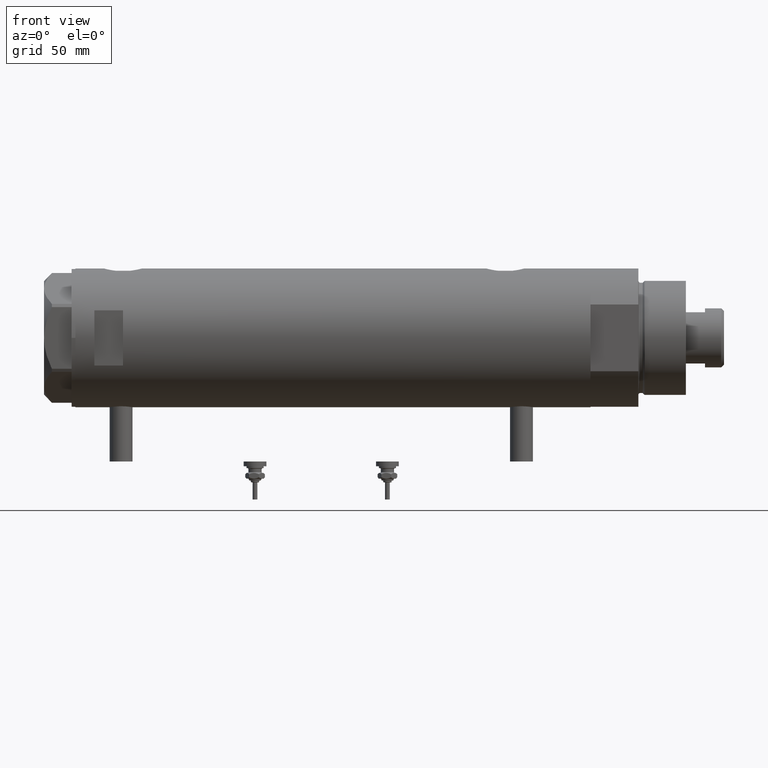
[diagram: clean part render]
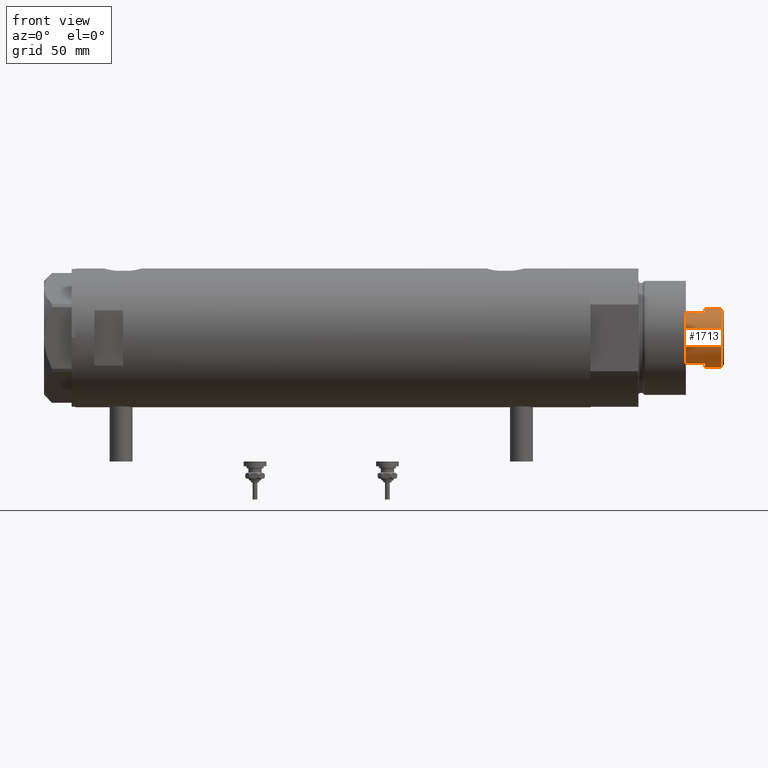
[diagram: same view with one face highlighted and labeled with its STEP entity id]
A machine part, front view. The second image highlights one B-rep face of the part: STEP entity #1713.
In plain terms, the highlighted cylindrical surface (edge-blend (fillet) strip) has radius 15.5 mm, axis along (-1, -0, 0).
Its self-contained STEP definition (entity closure, byte-faithful):
#159 = VERTEX_POINT ( 'NONE', #1065 ) ;
#220 = EDGE_CURVE ( 'NONE', #2466, #5393, #1039, .T. ) ;
#231 = DIRECTION ( 'NONE',  ( -0.000000000000000000, -0.000000000000000000, -1.000000000000000000 ) ) ;
#233 = ORIENTED_EDGE ( 'NONE', *, *, #3701, .T. ) ;
#391 = CARTESIAN_POINT ( 'NONE',  ( 0.000000000000000000, 0.000000000000000000, 305.0000000000000000 ) ) ;
#404 = EDGE_CURVE ( 'NONE', #1925, #767, #2929, .T. ) ;
#519 = DIRECTION ( 'NONE',  ( 0.000000000000000000, 0.000000000000000000, 1.000000000000000000 ) ) ;
#673 = DIRECTION ( 'NONE',  ( 1.000000000000000000, 0.000000000000000000, 0.000000000000000000 ) ) ;
#767 = VERTEX_POINT ( 'NONE', #4295 ) ;
#777 = ORIENTED_EDGE ( 'NONE', *, *, #2465, .T. ) ;
#841 = AXIS2_PLACEMENT_3D ( 'NONE', #1445, #3794, #1033 ) ;
#864 = EDGE_CURVE ( 'NONE', #2466, #159, #1584, .T. ) ;
#973 = DIRECTION ( 'NONE',  ( 1.000000000000000000, 0.000000000000000000, 0.000000000000000000 ) ) ;
#1033 = DIRECTION ( 'NONE',  ( 1.000000000000000000, 0.000000000000000000, 0.000000000000000000 ) ) ;
#1039 = LINE ( 'NONE', #2969, #4280 ) ;
#1065 = CARTESIAN_POINT ( 'NONE',  ( 15.50000000000000178, 1.898202538678397557E-15, 305.0000000000000000 ) ) ;
#1445 = CARTESIAN_POINT ( 'NONE',  ( 0.000000000000000000, 0.000000000000000000, 295.0000000000000000 ) ) ;
#1447 = EDGE_CURVE ( 'NONE', #5401, #5393, #3420, .T. ) ;
#1455 = ORIENTED_EDGE ( 'NONE', *, *, #864, .T. ) ;
#1578 = ORIENTED_EDGE ( 'NONE', *, *, #2135, .T. ) ;
#1584 = CIRCLE ( 'NONE', #5546, 15.50000000000000000 ) ;
#1609 = CARTESIAN_POINT ( 'NONE',  ( 0.000000000000000000, 0.000000000000000000, 313.5999999999999659 ) ) ;
#1640 = DIRECTION ( 'NONE',  ( 0.000000000000000000, 0.000000000000000000, -1.000000000000000000 ) ) ;
#1713 = ADVANCED_FACE ( 'NONE', ( #2762 ), #2263, .T. ) ;
#1743 = EDGE_LOOP ( 'NONE', ( #2913, #777, #233, #4989, #1578, #4020, #3346, #1455 ) ) ;
#1925 = VERTEX_POINT ( 'NONE', #4229 ) ;
#1996 = CARTESIAN_POINT ( 'NONE',  ( 0.000000000000000000, 0.000000000000000000, 305.0000000000000000 ) ) ;
#2135 = EDGE_CURVE ( 'NONE', #767, #5401, #3970, .T. ) ;
#2203 = AXIS2_PLACEMENT_3D ( 'NONE', #1609, #1640, #673 ) ;
#2263 = CYLINDRICAL_SURFACE ( 'NONE', #5177, 15.49999999999999822 ) ;
#2465 = EDGE_CURVE ( 'NONE', #5029, #5422, #2848, .T. ) ;
#2466 = VERTEX_POINT ( 'NONE', #2501 ) ;
#2501 = CARTESIAN_POINT ( 'NONE',  ( 13.48630416385453046, -7.639999999999995239, 305.0000000000000000 ) ) ;
#2600 = DIRECTION ( 'NONE',  ( -0.000000000000000000, -0.000000000000000000, -1.000000000000000000 ) ) ;
#2762 = FACE_OUTER_BOUND ( 'NONE', #1743, .T. ) ;
#2839 = CARTESIAN_POINT ( 'NONE',  ( -15.49999999999999822, 0.000000000000000000, 305.0000000000000000 ) ) ;
#2848 = CIRCLE ( 'NONE', #2203, 15.49999999999999822 ) ;
#2864 = DIRECTION ( 'NONE',  ( -0.000000000000000000, -0.000000000000000000, -1.000000000000000000 ) ) ;
#2913 = ORIENTED_EDGE ( 'NONE', *, *, #5817, .F. ) ;
#2919 = CARTESIAN_POINT ( 'NONE',  ( -13.48630416385452513, -7.639999999999921521, 295.0000000000000000 ) ) ;
#2929 = CIRCLE ( 'NONE', #3516, 15.50000000000000000 ) ;
#2954 = CARTESIAN_POINT ( 'NONE',  ( -15.49999999999999822, 0.000000000000000000, 313.5999999999999659 ) ) ;
#2969 = CARTESIAN_POINT ( 'NONE',  ( 13.48630416385453046, -7.639999999999995239, 305.0000000000000000 ) ) ;
#2984 = LINE ( 'NONE', #3014, #5525 ) ;
#3014 = CARTESIAN_POINT ( 'NONE',  ( 15.49999999999999822, 1.898202538678397163E-15, 305.0000000000000000 ) ) ;
#3047 = CARTESIAN_POINT ( 'NONE',  ( -13.48630416385452691, -7.640000000000001457, 305.0000000000000000 ) ) ;
#3346 = ORIENTED_EDGE ( 'NONE', *, *, #220, .F. ) ;
#3375 = DIRECTION ( 'NONE',  ( 1.000000000000000000, 0.000000000000000000, 0.000000000000000000 ) ) ;
#3420 = CIRCLE ( 'NONE', #841, 15.49999999999999822 ) ;
#3516 = AXIS2_PLACEMENT_3D ( 'NONE', #1996, #3833, #3375 ) ;
#3701 = EDGE_CURVE ( 'NONE', #5422, #1925, #5145, .T. ) ;
#3794 = DIRECTION ( 'NONE',  ( 0.000000000000000000, 0.000000000000000000, 1.000000000000000000 ) ) ;
#3833 = DIRECTION ( 'NONE',  ( 0.000000000000000000, 0.000000000000000000, 1.000000000000000000 ) ) ;
#3945 = CARTESIAN_POINT ( 'NONE',  ( 13.48630416385452691, -7.639999999999914415, 295.0000000000000000 ) ) ;
#3970 = LINE ( 'NONE', #3047, #5658 ) ;
#4020 = ORIENTED_EDGE ( 'NONE', *, *, #1447, .T. ) ;
#4220 = DIRECTION ( 'NONE',  ( -0.000000000000000000, -0.000000000000000000, -1.000000000000000000 ) ) ;
#4229 = CARTESIAN_POINT ( 'NONE',  ( -15.50000000000000178, 0.000000000000000000, 305.0000000000000000 ) ) ;
#4280 = VECTOR ( 'NONE', #2864, 1000.000000000000000 ) ;
#4295 = CARTESIAN_POINT ( 'NONE',  ( -13.48630416385452335, -7.640000000000004121, 305.0000000000000000 ) ) ;
#4531 = VECTOR ( 'NONE', #4220, 1000.000000000000000 ) ;
#4981 = DIRECTION ( 'NONE',  ( -0.000000000000000000, -0.000000000000000000, -1.000000000000000000 ) ) ;
#4989 = ORIENTED_EDGE ( 'NONE', *, *, #404, .T. ) ;
#5014 = CARTESIAN_POINT ( 'NONE',  ( 0.000000000000000000, 0.000000000000000000, 305.0000000000000000 ) ) ;
#5029 = VERTEX_POINT ( 'NONE', #5676 ) ;
#5145 = LINE ( 'NONE', #2839, #4531 ) ;
#5177 = AXIS2_PLACEMENT_3D ( 'NONE', #391, #4981, #5488 ) ;
#5393 = VERTEX_POINT ( 'NONE', #3945 ) ;
#5401 = VERTEX_POINT ( 'NONE', #2919 ) ;
#5422 = VERTEX_POINT ( 'NONE', #2954 ) ;
#5488 = DIRECTION ( 'NONE',  ( -1.000000000000000000, 0.000000000000000000, 0.000000000000000000 ) ) ;
#5525 = VECTOR ( 'NONE', #231, 1000.000000000000000 ) ;
#5546 = AXIS2_PLACEMENT_3D ( 'NONE', #5014, #519, #973 ) ;
#5658 = VECTOR ( 'NONE', #2600, 1000.000000000000000 ) ;
#5676 = CARTESIAN_POINT ( 'NONE',  ( 15.49999999999999822, 1.898202538678397163E-15, 313.5999999999999659 ) ) ;
#5817 = EDGE_CURVE ( 'NONE', #5029, #159, #2984, .T. ) ;